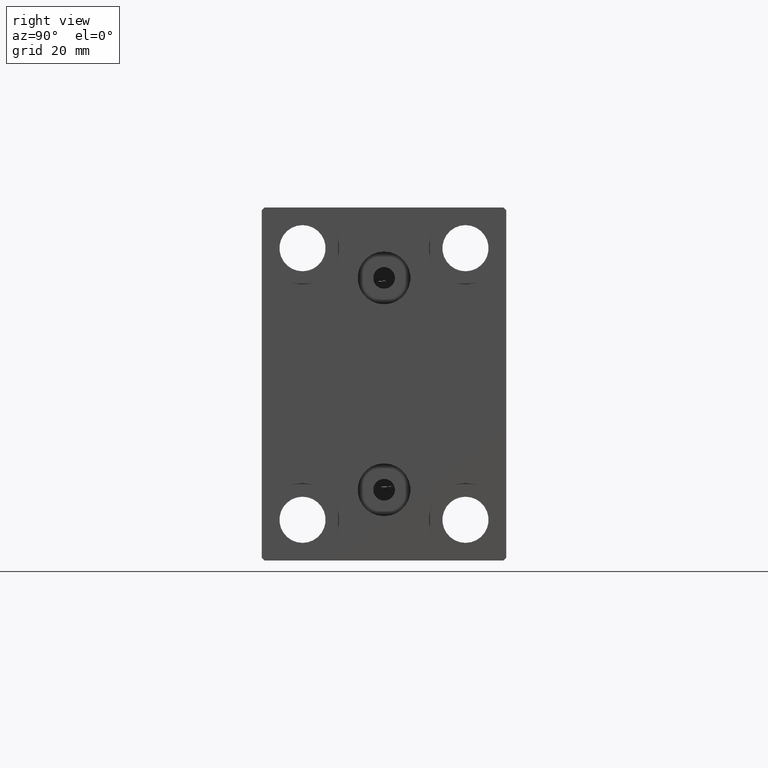
[diagram: clean part render]
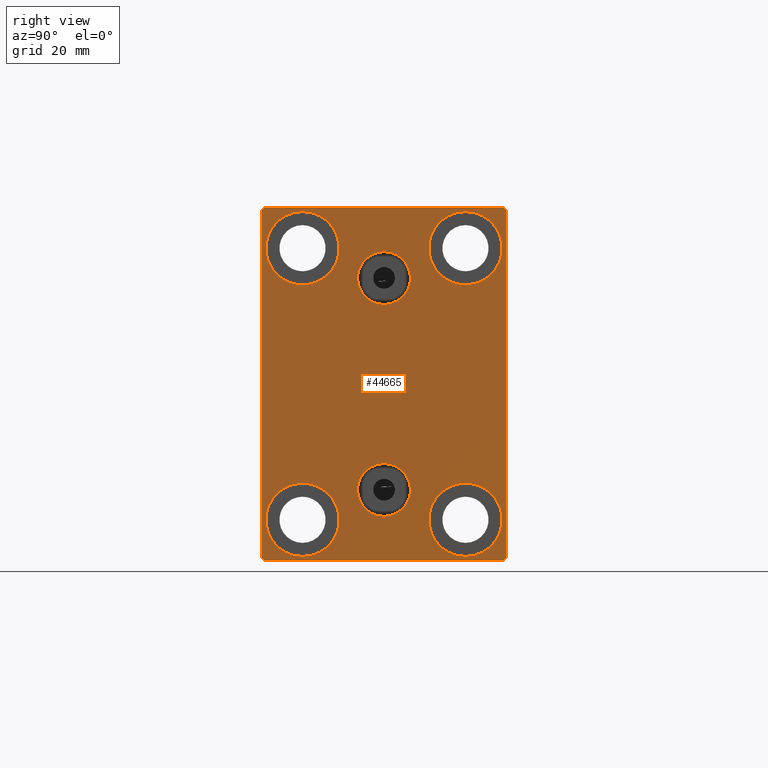
[diagram: same view with one face highlighted and labeled with its STEP entity id]
A machine part, right view. The second image highlights one B-rep face of the part: STEP entity #44665.
In plain terms, the highlighted planar face has unit normal (1, 0, 0).
Its self-contained STEP definition (entity closure, byte-faithful):
#236 = CARTESIAN_POINT ( 'NONE',  ( 70.00000000000000000, -22.50000000000000711, 31.99999999999999289 ) ) ;
#574 = AXIS2_PLACEMENT_3D ( 'NONE', #2264, #5485, #19931 ) ;
#960 = LINE ( 'NONE', #14954, #32663 ) ;
#1501 = CARTESIAN_POINT ( 'NONE',  ( 70.00000000000000000, 14.99999999999999645, -25.00000000000000000 ) ) ;
#1566 = VERTEX_POINT ( 'NONE', #236 ) ;
#1716 = CARTESIAN_POINT ( 'NONE',  ( 70.00000000000000000, 27.25000000000014921, 27.24999999999976907 ) ) ;
#2198 = EDGE_CURVE ( 'NONE', #44350, #44329, #39179, .T. ) ;
#2232 = EDGE_LOOP ( 'NONE', ( #27371, #12215 ) ) ;
#2264 = CARTESIAN_POINT ( 'NONE',  ( 70.00000000000000000, -15.00000000000000355, -25.00000000000000000 ) ) ;
#2328 = LINE ( 'NONE', #45074, #20670 ) ;
#2336 = CARTESIAN_POINT ( 'NONE',  ( 70.00000000000000000, 22.00000000000001421, -32.50000000000000711 ) ) ;
#2347 = EDGE_CURVE ( 'NONE', #44329, #44350, #13490, .T. ) ;
#2384 = DIRECTION ( 'NONE',  ( 0.000000000000000000, -1.067522139062650425E-16, 1.000000000000000000 ) ) ;
#4099 = LINE ( 'NONE', #18094, #22161 ) ;
#4239 = VERTEX_POINT ( 'NONE', #16184 ) ;
#5312 = EDGE_CURVE ( 'NONE', #4239, #14988, #5390, .T. ) ;
#5390 = CIRCLE ( 'NONE', #20034, 4.859999999999999432 ) ;
#5485 = DIRECTION ( 'NONE',  ( -1.000000000000000000, -0.000000000000000000, -0.000000000000000000 ) ) ;
#5604 = CARTESIAN_POINT ( 'NONE',  ( 70.00000000000000000, -27.25000000000032330, -27.24999999999957012 ) ) ;
#5658 = CIRCLE ( 'NONE', #574, 6.749999999999999112 ) ;
#5806 = EDGE_CURVE ( 'NONE', #30182, #12845, #27385, .T. ) ;
#6018 = VERTEX_POINT ( 'NONE', #25141 ) ;
#6238 = DIRECTION ( 'NONE',  ( 1.000000000000000000, 0.000000000000000000, 0.000000000000000000 ) ) ;
#6579 = VERTEX_POINT ( 'NONE', #7122 ) ;
#6707 = CIRCLE ( 'NONE', #22825, 4.859999999999999432 ) ;
#7118 = EDGE_CURVE ( 'NONE', #38599, #25302, #40091, .T. ) ;
#7122 = CARTESIAN_POINT ( 'NONE',  ( 70.00000000000000000, 22.50000000000000000, -32.00000000000002132 ) ) ;
#8195 = ORIENTED_EDGE ( 'NONE', *, *, #43906, .T. ) ;
#9277 = DIRECTION ( 'NONE',  ( -0.000000000000000000, 0.7071067811865378028, -0.7071067811865573427 ) ) ;
#9322 = EDGE_CURVE ( 'NONE', #1566, #38599, #960, .T. ) ;
#9639 = EDGE_LOOP ( 'NONE', ( #37392, #30242, #23195, #34001, #8195, #10074, #13573, #20011 ) ) ;
#10074 = ORIENTED_EDGE ( 'NONE', *, *, #29408, .T. ) ;
#10137 = DIRECTION ( 'NONE',  ( -1.000000000000000000, -0.000000000000000000, -0.000000000000000000 ) ) ;
#10150 = CARTESIAN_POINT ( 'NONE',  ( 70.00000000000000000, -3.571693674697836683E-15, 19.50000000000000355 ) ) ;
#10524 = CIRCLE ( 'NONE', #16373, 6.749999999999999112 ) ;
#10579 = AXIS2_PLACEMENT_3D ( 'NONE', #38473, #23513, #14328 ) ;
#10753 = AXIS2_PLACEMENT_3D ( 'NONE', #32281, #42862, #28600 ) ;
#11342 = VERTEX_POINT ( 'NONE', #2336 ) ;
#11684 = EDGE_LOOP ( 'NONE', ( #40849, #13908 ) ) ;
#12215 = ORIENTED_EDGE ( 'NONE', *, *, #25680, .T. ) ;
#12372 = CIRCLE ( 'NONE', #18971, 6.749999999999999112 ) ;
#12549 = CARTESIAN_POINT ( 'NONE',  ( 70.00000000000000000, 2.388061258337338150E-15, -19.49999999999999645 ) ) ;
#12845 = VERTEX_POINT ( 'NONE', #18933 ) ;
#12917 = EDGE_CURVE ( 'NONE', #6579, #13094, #41211, .T. ) ;
#12958 = LINE ( 'NONE', #1716, #21641 ) ;
#13094 = VERTEX_POINT ( 'NONE', #25998 ) ;
#13490 = CIRCLE ( 'NONE', #10579, 6.749999999999999112 ) ;
#13573 = ORIENTED_EDGE ( 'NONE', *, *, #12917, .T. ) ;
#13646 = VERTEX_POINT ( 'NONE', #16965 ) ;
#13812 = FACE_BOUND ( 'NONE', #44104, .T. ) ;
#13908 = ORIENTED_EDGE ( 'NONE', *, *, #5312, .F. ) ;
#14328 = DIRECTION ( 'NONE',  ( 0.000000000000000000, 0.000000000000000000, 1.000000000000000000 ) ) ;
#14592 = DIRECTION ( 'NONE',  ( -1.000000000000000000, -0.000000000000000000, -0.000000000000000000 ) ) ;
#14850 = CARTESIAN_POINT ( 'NONE',  ( 70.00000000000000000, -22.00000000000002132, -32.50000000000000711 ) ) ;
#14954 = CARTESIAN_POINT ( 'NONE',  ( 70.00000000000000000, -22.50000000000000711, 32.49999999999999289 ) ) ;
#14961 = ORIENTED_EDGE ( 'NONE', *, *, #2347, .T. ) ;
#14988 = VERTEX_POINT ( 'NONE', #28354 ) ;
#15996 = CARTESIAN_POINT ( 'NONE',  ( 70.00000000000000000, 21.99999999999999289, 32.50000000000000000 ) ) ;
#16184 = CARTESIAN_POINT ( 'NONE',  ( 70.00000000000000000, -2.976515330312223406E-15, 24.36000000000000298 ) ) ;
#16373 = AXIS2_PLACEMENT_3D ( 'NONE', #21437, #18663, #25569 ) ;
#16965 = CARTESIAN_POINT ( 'NONE',  ( 70.00000000000000000, -14.99999999999999645, 18.25000000000000355 ) ) ;
#17025 = FACE_BOUND ( 'NONE', #2232, .T. ) ;
#17254 = FACE_OUTER_BOUND ( 'NONE', #9639, .T. ) ;
#17620 = ORIENTED_EDGE ( 'NONE', *, *, #35413, .F. ) ;
#17840 = DIRECTION ( 'NONE',  ( 1.000000000000000000, 0.000000000000000000, -0.000000000000000000 ) ) ;
#18091 = CIRCLE ( 'NONE', #10753, 6.749999999999999112 ) ;
#18094 = CARTESIAN_POINT ( 'NONE',  ( 70.00000000000000000, 22.49999999999999289, 32.50000000000000000 ) ) ;
#18414 = AXIS2_PLACEMENT_3D ( 'NONE', #27817, #10137, #42550 ) ;
#18663 = DIRECTION ( 'NONE',  ( -1.000000000000000000, -0.000000000000000000, -0.000000000000000000 ) ) ;
#18933 = CARTESIAN_POINT ( 'NONE',  ( 70.00000000000000000, 2.388061258337338150E-15, -24.35999999999999588 ) ) ;
#18949 = EDGE_CURVE ( 'NONE', #13094, #23275, #12958, .T. ) ;
#18971 = AXIS2_PLACEMENT_3D ( 'NONE', #35517, #14592, #25388 ) ;
#18988 = DIRECTION ( 'NONE',  ( 1.000000000000000000, 0.000000000000000000, -0.000000000000000000 ) ) ;
#19043 = CARTESIAN_POINT ( 'NONE',  ( 70.00000000000000000, -27.25000000000000000, 27.25000000000000000 ) ) ;
#19309 = AXIS2_PLACEMENT_3D ( 'NONE', #1501, #33184, #19389 ) ;
#19389 = DIRECTION ( 'NONE',  ( 0.000000000000000000, 0.000000000000000000, 1.000000000000000000 ) ) ;
#19582 = VECTOR ( 'NONE', #31131, 1000.000000000000114 ) ;
#19886 = CARTESIAN_POINT ( 'NONE',  ( 70.00000000000000000, -22.50000000000000711, -32.00000000000000711 ) ) ;
#19931 = DIRECTION ( 'NONE',  ( 0.000000000000000000, 0.000000000000000000, 1.000000000000000000 ) ) ;
#20011 = ORIENTED_EDGE ( 'NONE', *, *, #18949, .T. ) ;
#20034 = AXIS2_PLACEMENT_3D ( 'NONE', #42399, #45391, #27893 ) ;
#20097 = LINE ( 'NONE', #44721, #19582 ) ;
#20298 = CARTESIAN_POINT ( 'NONE',  ( 70.00000000000000000, 14.99999999999999645, -18.25000000000000355 ) ) ;
#20467 = PLANE ( 'NONE',  #30346 ) ;
#20584 = ORIENTED_EDGE ( 'NONE', *, *, #2198, .T. ) ;
#20670 = VECTOR ( 'NONE', #41155, 1000.000000000000000 ) ;
#20793 = AXIS2_PLACEMENT_3D ( 'NONE', #41990, #17840, #28424 ) ;
#21437 = CARTESIAN_POINT ( 'NONE',  ( 70.00000000000000000, -14.99999999999999645, 25.00000000000000000 ) ) ;
#21641 = VECTOR ( 'NONE', #33860, 999.9999999999998863 ) ;
#22161 = VECTOR ( 'NONE', #26103, 1000.000000000000000 ) ;
#22208 = CARTESIAN_POINT ( 'NONE',  ( 70.00000000000000000, 15.00000000000000355, 31.75000000000000000 ) ) ;
#22360 = DIRECTION ( 'NONE',  ( 0.000000000000000000, 0.000000000000000000, 1.000000000000000000 ) ) ;
#22825 = AXIS2_PLACEMENT_3D ( 'NONE', #10150, #24150, #38199 ) ;
#22926 = CARTESIAN_POINT ( 'NONE',  ( 70.00000000000000000, 2.983239602722951428E-15, -14.63999999999999702 ) ) ;
#23195 = ORIENTED_EDGE ( 'NONE', *, *, #9322, .T. ) ;
#23275 = VERTEX_POINT ( 'NONE', #15996 ) ;
#23362 = VERTEX_POINT ( 'NONE', #44746 ) ;
#23453 = FACE_BOUND ( 'NONE', #35306, .T. ) ;
#23513 = DIRECTION ( 'NONE',  ( -1.000000000000000000, -0.000000000000000000, -0.000000000000000000 ) ) ;
#23591 = VERTEX_POINT ( 'NONE', #36552 ) ;
#24150 = DIRECTION ( 'NONE',  ( 1.000000000000000000, 0.000000000000000000, 0.000000000000000000 ) ) ;
#24358 = FACE_BOUND ( 'NONE', #11684, .T. ) ;
#24878 = CIRCLE ( 'NONE', #29272, 4.859999999999999432 ) ;
#25141 = CARTESIAN_POINT ( 'NONE',  ( 70.00000000000000000, -15.00000000000000355, -31.75000000000000000 ) ) ;
#25302 = VERTEX_POINT ( 'NONE', #14850 ) ;
#25388 = DIRECTION ( 'NONE',  ( 0.000000000000000000, 0.000000000000000000, 1.000000000000000000 ) ) ;
#25569 = DIRECTION ( 'NONE',  ( 0.000000000000000000, 0.000000000000000000, 1.000000000000000000 ) ) ;
#25669 = DIRECTION ( 'NONE',  ( 0.000000000000000000, 0.000000000000000000, 1.000000000000000000 ) ) ;
#25680 = EDGE_CURVE ( 'NONE', #23362, #6018, #38684, .T. ) ;
#25803 = CARTESIAN_POINT ( 'NONE',  ( 70.00000000000000000, -15.00000000000000355, -25.00000000000000000 ) ) ;
#25998 = CARTESIAN_POINT ( 'NONE',  ( 70.00000000000000000, 22.49999999999999289, 31.99999999999999289 ) ) ;
#26103 = DIRECTION ( 'NONE',  ( 0.000000000000000000, -1.000000000000000000, -1.541976423090495387E-16 ) ) ;
#26657 = VECTOR ( 'NONE', #9277, 1000.000000000000000 ) ;
#26898 = AXIS2_PLACEMENT_3D ( 'NONE', #25803, #39845, #22360 ) ;
#26985 = ORIENTED_EDGE ( 'NONE', *, *, #44418, .T. ) ;
#27187 = CARTESIAN_POINT ( 'NONE',  ( 70.00000000000000000, 14.99999999999999645, -31.75000000000000000 ) ) ;
#27285 = CARTESIAN_POINT ( 'NONE',  ( 70.00000000000000000, -14.99999999999999645, 31.75000000000000000 ) ) ;
#27371 = ORIENTED_EDGE ( 'NONE', *, *, #30249, .T. ) ;
#27385 = CIRCLE ( 'NONE', #20793, 4.859999999999999432 ) ;
#27589 = FACE_BOUND ( 'NONE', #38133, .T. ) ;
#27764 = EDGE_CURVE ( 'NONE', #35154, #13646, #18091, .T. ) ;
#27817 = CARTESIAN_POINT ( 'NONE',  ( 70.00000000000000000, 15.00000000000000355, 25.00000000000000000 ) ) ;
#27818 = CARTESIAN_POINT ( 'NONE',  ( 70.00000000000000000, 0.000000000000000000, 0.000000000000000000 ) ) ;
#27893 = DIRECTION ( 'NONE',  ( 0.000000000000000000, 0.000000000000000000, -1.000000000000000000 ) ) ;
#27966 = CARTESIAN_POINT ( 'NONE',  ( 70.00000000000000000, 15.00000000000000355, 18.25000000000000355 ) ) ;
#28354 = CARTESIAN_POINT ( 'NONE',  ( 70.00000000000000000, -3.571693674697836683E-15, 14.64000000000000412 ) ) ;
#28424 = DIRECTION ( 'NONE',  ( 0.000000000000000000, 0.000000000000000000, 1.000000000000000000 ) ) ;
#28600 = DIRECTION ( 'NONE',  ( 0.000000000000000000, 0.000000000000000000, 1.000000000000000000 ) ) ;
#29272 = AXIS2_PLACEMENT_3D ( 'NONE', #12549, #18988, #25669 ) ;
#29408 = EDGE_CURVE ( 'NONE', #11342, #6579, #20097, .T. ) ;
#30142 = CIRCLE ( 'NONE', #18414, 6.749999999999999112 ) ;
#30182 = VERTEX_POINT ( 'NONE', #22926 ) ;
#30242 = ORIENTED_EDGE ( 'NONE', *, *, #31077, .T. ) ;
#30249 = EDGE_CURVE ( 'NONE', #6018, #23362, #5658, .T. ) ;
#30339 = VERTEX_POINT ( 'NONE', #27966 ) ;
#30346 = AXIS2_PLACEMENT_3D ( 'NONE', #27818, #6238, #31040 ) ;
#30593 = ORIENTED_EDGE ( 'NONE', *, *, #40023, .T. ) ;
#31040 = DIRECTION ( 'NONE',  ( 0.000000000000000000, 0.000000000000000000, -1.000000000000000000 ) ) ;
#31077 = EDGE_CURVE ( 'NONE', #23591, #1566, #33067, .T. ) ;
#31131 = DIRECTION ( 'NONE',  ( -0.000000000000000000, 0.7071067811865376918, 0.7071067811865573427 ) ) ;
#32281 = CARTESIAN_POINT ( 'NONE',  ( 70.00000000000000000, -14.99999999999999645, 25.00000000000000000 ) ) ;
#32642 = EDGE_LOOP ( 'NONE', ( #26985, #41618 ) ) ;
#32663 = VECTOR ( 'NONE', #42783, 1000.000000000000000 ) ;
#33067 = LINE ( 'NONE', #19043, #39512 ) ;
#33184 = DIRECTION ( 'NONE',  ( -1.000000000000000000, -0.000000000000000000, -0.000000000000000000 ) ) ;
#33860 = DIRECTION ( 'NONE',  ( -0.000000000000000000, -0.7071067811865425767, 0.7071067811865525687 ) ) ;
#34001 = ORIENTED_EDGE ( 'NONE', *, *, #7118, .T. ) ;
#34339 = EDGE_CURVE ( 'NONE', #30339, #43110, #12372, .T. ) ;
#35154 = VERTEX_POINT ( 'NONE', #27285 ) ;
#35306 = EDGE_LOOP ( 'NONE', ( #14961, #20584 ) ) ;
#35413 = EDGE_CURVE ( 'NONE', #12845, #30182, #24878, .T. ) ;
#35517 = CARTESIAN_POINT ( 'NONE',  ( 70.00000000000000000, 15.00000000000000355, 25.00000000000000000 ) ) ;
#36088 = DIRECTION ( 'NONE',  ( 0.000000000000000000, -0.7071067811865474617, -0.7071067811865474617 ) ) ;
#36552 = CARTESIAN_POINT ( 'NONE',  ( 70.00000000000000000, -21.99999999999999289, 32.49999999999999289 ) ) ;
#37392 = ORIENTED_EDGE ( 'NONE', *, *, #43165, .T. ) ;
#37548 = CARTESIAN_POINT ( 'NONE',  ( 70.00000000000000000, 22.50000000000000000, -32.50000000000000711 ) ) ;
#38133 = EDGE_LOOP ( 'NONE', ( #40233, #30593 ) ) ;
#38199 = DIRECTION ( 'NONE',  ( 0.000000000000000000, 0.000000000000000000, -1.000000000000000000 ) ) ;
#38473 = CARTESIAN_POINT ( 'NONE',  ( 70.00000000000000000, 14.99999999999999645, -25.00000000000000000 ) ) ;
#38599 = VERTEX_POINT ( 'NONE', #19886 ) ;
#38684 = CIRCLE ( 'NONE', #26898, 6.749999999999999112 ) ;
#39179 = CIRCLE ( 'NONE', #19309, 6.749999999999999112 ) ;
#39512 = VECTOR ( 'NONE', #36088, 1000.000000000000114 ) ;
#39845 = DIRECTION ( 'NONE',  ( -1.000000000000000000, -0.000000000000000000, -0.000000000000000000 ) ) ;
#40023 = EDGE_CURVE ( 'NONE', #43110, #30339, #30142, .T. ) ;
#40091 = LINE ( 'NONE', #5604, #26657 ) ;
#40233 = ORIENTED_EDGE ( 'NONE', *, *, #34339, .T. ) ;
#40849 = ORIENTED_EDGE ( 'NONE', *, *, #40960, .F. ) ;
#40960 = EDGE_CURVE ( 'NONE', #14988, #4239, #6707, .T. ) ;
#41155 = DIRECTION ( 'NONE',  ( 0.000000000000000000, 1.000000000000000000, 0.000000000000000000 ) ) ;
#41165 = FACE_BOUND ( 'NONE', #32642, .T. ) ;
#41211 = LINE ( 'NONE', #37548, #42021 ) ;
#41618 = ORIENTED_EDGE ( 'NONE', *, *, #27764, .T. ) ;
#41990 = CARTESIAN_POINT ( 'NONE',  ( 70.00000000000000000, 2.388061258337338150E-15, -19.49999999999999645 ) ) ;
#42021 = VECTOR ( 'NONE', #2384, 1000.000000000000000 ) ;
#42399 = CARTESIAN_POINT ( 'NONE',  ( 70.00000000000000000, -3.571693674697836683E-15, 19.50000000000000355 ) ) ;
#42550 = DIRECTION ( 'NONE',  ( 0.000000000000000000, 0.000000000000000000, 1.000000000000000000 ) ) ;
#42783 = DIRECTION ( 'NONE',  ( 0.000000000000000000, 0.000000000000000000, -1.000000000000000000 ) ) ;
#42862 = DIRECTION ( 'NONE',  ( -1.000000000000000000, -0.000000000000000000, -0.000000000000000000 ) ) ;
#43110 = VERTEX_POINT ( 'NONE', #22208 ) ;
#43165 = EDGE_CURVE ( 'NONE', #23275, #23591, #4099, .T. ) ;
#43246 = ORIENTED_EDGE ( 'NONE', *, *, #5806, .F. ) ;
#43906 = EDGE_CURVE ( 'NONE', #25302, #11342, #2328, .T. ) ;
#44104 = EDGE_LOOP ( 'NONE', ( #17620, #43246 ) ) ;
#44329 = VERTEX_POINT ( 'NONE', #27187 ) ;
#44350 = VERTEX_POINT ( 'NONE', #20298 ) ;
#44418 = EDGE_CURVE ( 'NONE', #13646, #35154, #10524, .T. ) ;
#44665 = ADVANCED_FACE ( 'NONE', ( #24358, #13812, #23453, #41165, #27589, #17025, #17254 ), #20467, .T. ) ;
#44721 = CARTESIAN_POINT ( 'NONE',  ( 70.00000000000000000, 27.25000000000032685, -27.24999999999957012 ) ) ;
#44746 = CARTESIAN_POINT ( 'NONE',  ( 70.00000000000000000, -15.00000000000000355, -18.25000000000000355 ) ) ;
#45074 = CARTESIAN_POINT ( 'NONE',  ( 70.00000000000000000, -22.50000000000000711, -32.50000000000000711 ) ) ;
#45391 = DIRECTION ( 'NONE',  ( 1.000000000000000000, 0.000000000000000000, 0.000000000000000000 ) ) ;